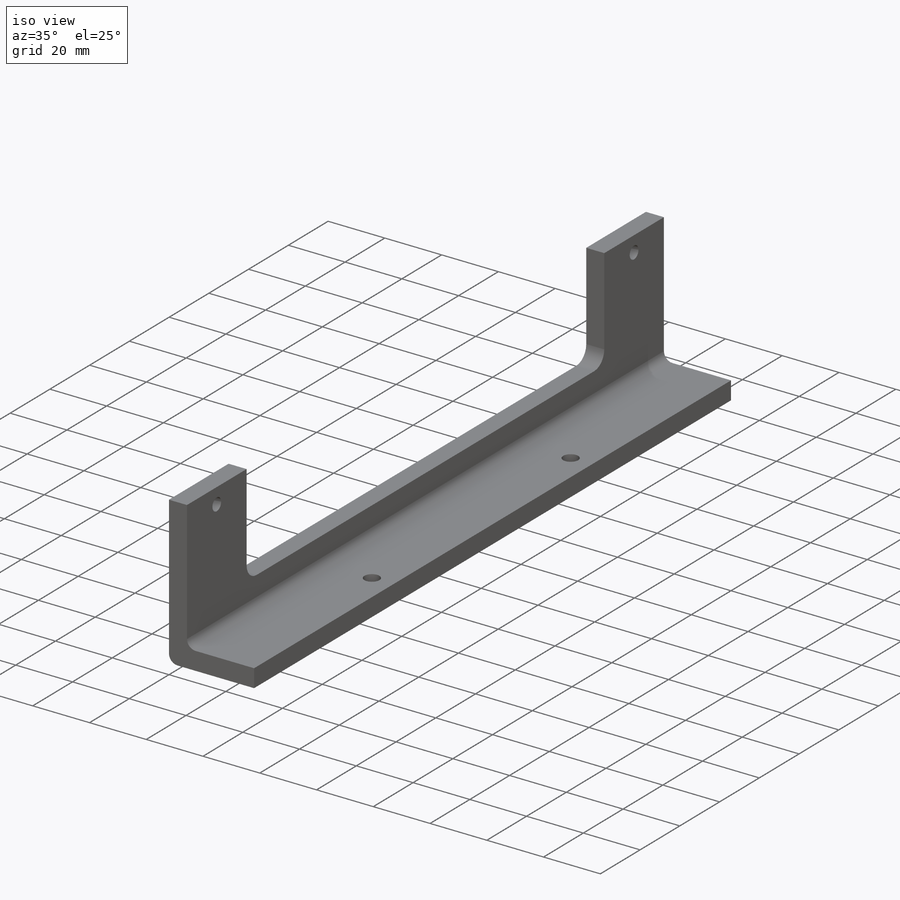
[diagram: iso view]
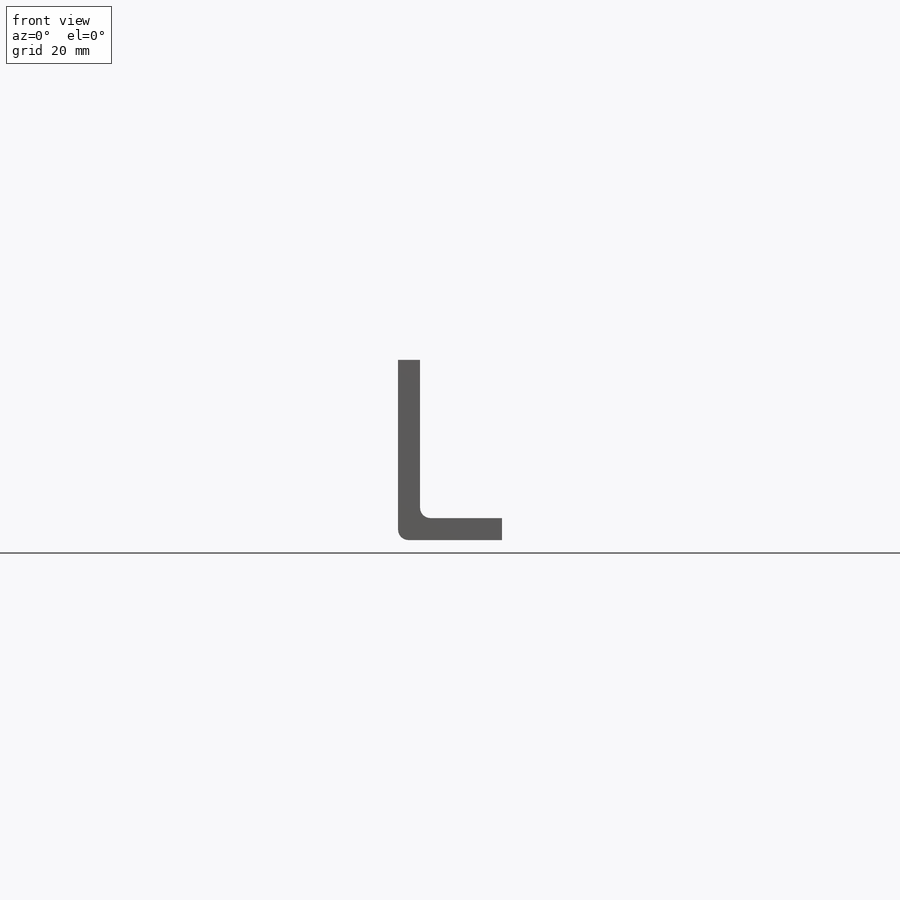
[diagram: front view]
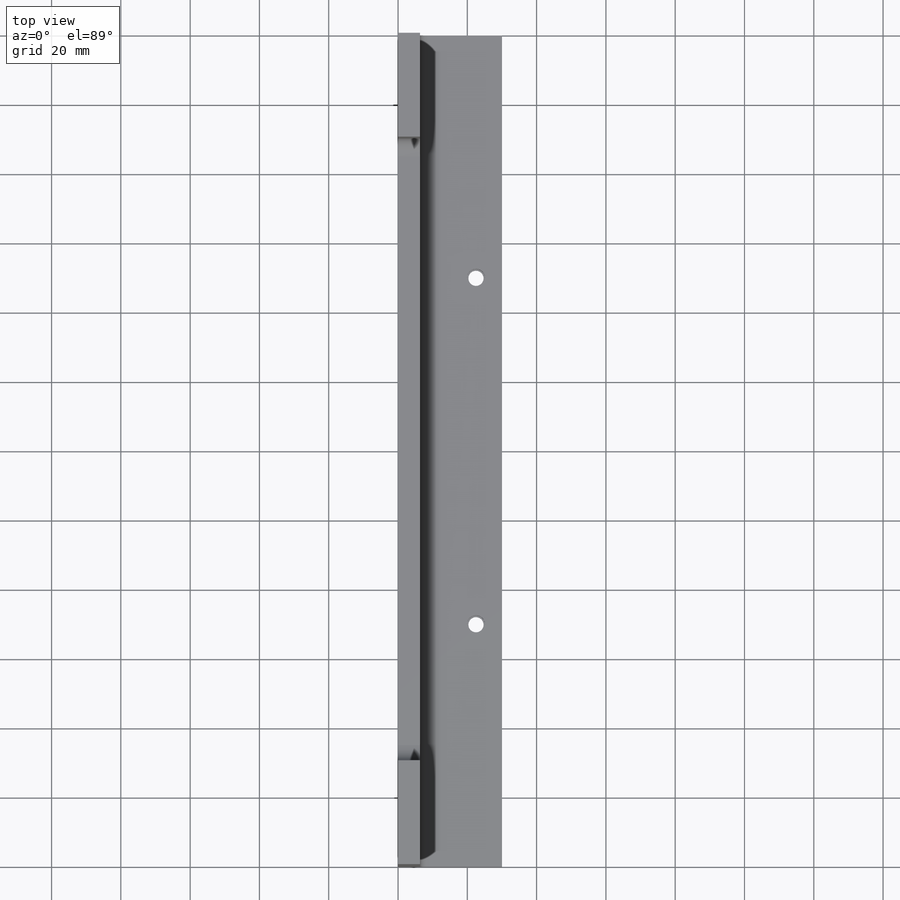
[diagram: top view]
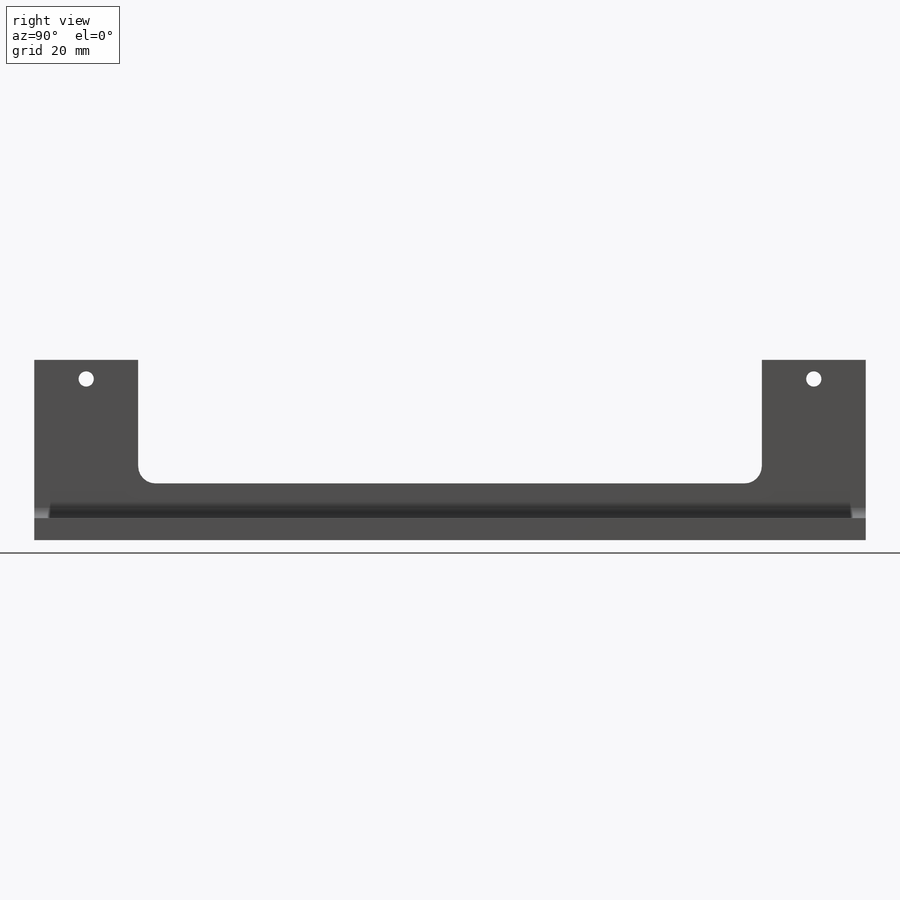
[diagram: right view]
SOLIDWORKS PART (.sldprt)
format: sldprt  version: not decoded by parser v0  size: 390,656 bytes
history: native  units: mm
features: sketch x10, cut_extrude x3, hole x2, thread x2, material x1, fillet x1 (+11 scaffold rows collapsed)
feature tree (30):
  scaffold x11  (default folders/planes/origin — collapsed)
  material  "6061-T6 Al"
  sketch  "Sketch1"  dims[c1.D1=55.0mm c1.D2=50.8mm c2.D1=240.0mm c2.D5=6.35mm c2.D6=1.0mm c2.D7=1.5mm]
  sketch  "Sketch3"  dims[D1=30.0mm D2=35.0mm D3=5.0mm D4=300.0mm]
  cut_extrude  "Extrude2"  [1 undecoded]
  sketch  "Sketch4"  dims[c1.D3=4.5mm c1.D7=4.0mm c1.D8=3.0mm c1.D9=2.5mm c1.D1=100.0mm c1.D2=70.0mm c1.D4=7.5mm c1.D5=4.5mm c1.D6=2.25mm c2.D8=2.5mm c2.D9=3.0mm c2.D10=70.0mm]
  sketch  "Sketch7"  dims[D1=52.0mm D2=30.0mm D3=5.0mm D4=300.0mm]
  cut_extrude  "Extrude4"  [1 undecoded]
  sketch  "Sketch10"  dims[c1.D6=5.0mm c1.D1=30.0mm c1.D2=30.0mm c1.D3=35.0mm c1.D4=50.0mm c1.D5=16.35mm c2.D2=30.0mm c2.D3=38.65mm]
  cut_extrude  "Extrude5"  [1 undecoded]
  hole  "Tapped Hole for #8-32 Helicoil1"  [1 undecoded]
  sketch  "3DSketch3"  dims[c1.D1=~5.617559mm c1.D4=5.5mm c1.D2=15.0mm c1.D3=15.0mm c2.D1=5.5mm c2.D4=5.5mm c3.D1=9.15mm c3.D4=5.5mm c4.D1=5.5mm]
  thread  "Hole Thread3"  Diameter=5.08mm  [1 undecoded]
  thread  "Hole Thread4"  Diameter=5.08mm  [1 undecoded]
  sketch  "Sketch32"  dims[hole-wizard template sketch: 60 standard entries collapsed; hole parameters kept: c18.Thru Tap Drill Depth=6.35mm]
  sketch  "Sketch14"
  hole  "Tapped Hole for #8-32 Helicoil2"  Diameter=4.3942mm Depth=11.1252mm
  sketch  "3DSketch4"
  sketch  "Sketch33"  dims[hole-wizard template sketch: 28 standard entries collapsed; hole parameters kept: c8.Tap Drill Dia.=4.3942mm c8.Tap Drill Depth=11.1252mm c8.Thread Major Dia.=~5.27558mm c8.Thread Depth=5.08mm c8.D5=~14.816244mm c8.Drill Angle=118.0deg]
  fillet  "Fillet5"  Radius=3mm
decode coverage: 12 of 18 modeling features carry decoded parameters
note: ~ marks probable driven/reference dimensions
note: 6 parameter values undecoded
summary: no parameter record found for 4 features
note: suppression state not decoded; provenance and decode notes live in map.json
